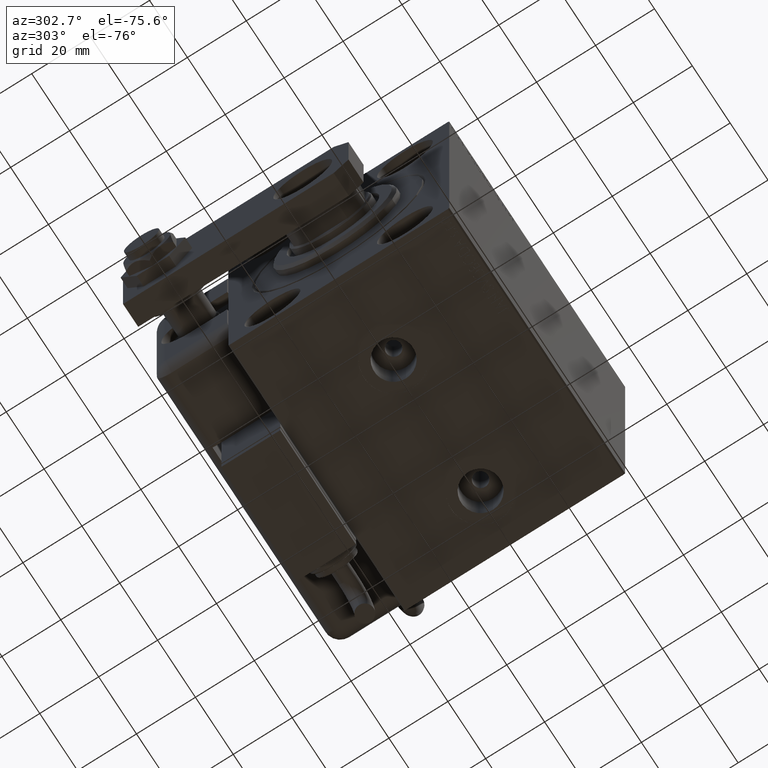
[diagram: clean part render]
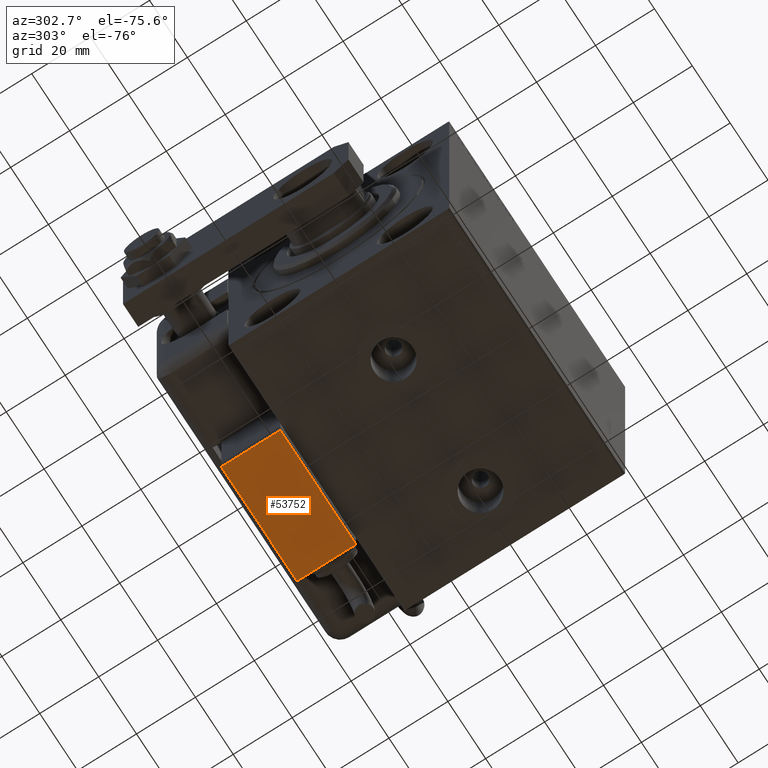
[diagram: same view with one face highlighted and labeled with its STEP entity id]
A machine part, auxiliary view. The second image highlights one B-rep face of the part: STEP entity #53752.
In plain terms, the highlighted planar face has unit normal (0, 0, 1).
Its self-contained STEP definition (entity closure, byte-faithful):
#531 = VECTOR ( 'NONE', #44403, 1000.000000000000000 ) ;
#688 = CARTESIAN_POINT ( 'NONE',  ( 0.000000000000000000, -17.49999999999996092, 0.000000000000000000 ) ) ;
#2960 = LINE ( 'NONE', #54049, #531 ) ;
#3807 = DIRECTION ( 'NONE',  ( 1.000000000000000000, 0.000000000000000000, 0.000000000000000000 ) ) ;
#3874 = CARTESIAN_POINT ( 'NONE',  ( -19.99999999999994316, -17.49999999999996092, 10.00000000000000000 ) ) ;
#6431 = DIRECTION ( 'NONE',  ( 0.000000000000000000, 1.000000000000000000, 0.000000000000000000 ) ) ;
#7235 = CARTESIAN_POINT ( 'NONE',  ( -19.99999999999994316, -17.49999999999996092, -9.999999999999998224 ) ) ;
#7674 = ORIENTED_EDGE ( 'NONE', *, *, #58037, .T. ) ;
#8703 = VERTEX_POINT ( 'NONE', #11074 ) ;
#9440 = EDGE_CURVE ( 'NONE', #37365, #53766, #48945, .T. ) ;
#10376 = DIRECTION ( 'NONE',  ( 0.000000000000000000, -0.000000000000000000, 1.000000000000000000 ) ) ;
#11074 = CARTESIAN_POINT ( 'NONE',  ( -19.99999999999994316, -17.49999999999996092, -9.999999999999998224 ) ) ;
#17436 = EDGE_CURVE ( 'NONE', #8703, #48810, #48654, .T. ) ;
#19445 = FACE_OUTER_BOUND ( 'NONE', #59650, .T. ) ;
#20152 = CARTESIAN_POINT ( 'NONE',  ( 20.00000000000005329, -17.49999999999996092, 10.00000000000000000 ) ) ;
#20246 = EDGE_CURVE ( 'NONE', #53766, #8703, #2960, .T. ) ;
#23741 = DIRECTION ( 'NONE',  ( 0.000000000000000000, 0.000000000000000000, 1.000000000000000000 ) ) ;
#27382 = CARTESIAN_POINT ( 'NONE',  ( 20.00000000000005329, -17.49999999999996092, -9.999999999999998224 ) ) ;
#27502 = CARTESIAN_POINT ( 'NONE',  ( 20.00000000000005329, -17.49999999999996092, -9.999999999999998224 ) ) ;
#31271 = ORIENTED_EDGE ( 'NONE', *, *, #9440, .T. ) ;
#33436 = AXIS2_PLACEMENT_3D ( 'NONE', #688, #6431, #10376 ) ;
#37365 = VERTEX_POINT ( 'NONE', #20152 ) ;
#41045 = VECTOR ( 'NONE', #3807, 1000.000000000000000 ) ;
#42773 = VECTOR ( 'NONE', #45590, 1000.000000000000000 ) ;
#44403 = DIRECTION ( 'NONE',  ( -0.000000000000000000, -0.000000000000000000, -1.000000000000000000 ) ) ;
#45590 = DIRECTION ( 'NONE',  ( -1.000000000000000000, -0.000000000000000000, -0.000000000000000000 ) ) ;
#48654 = LINE ( 'NONE', #7235, #41045 ) ;
#48810 = VERTEX_POINT ( 'NONE', #27502 ) ;
#48945 = LINE ( 'NONE', #3874, #42773 ) ;
#50013 = VECTOR ( 'NONE', #23741, 1000.000000000000000 ) ;
#51787 = PLANE ( 'NONE',  #33436 ) ;
#52058 = ORIENTED_EDGE ( 'NONE', *, *, #20246, .T. ) ;
#53752 = ADVANCED_FACE ( 'NONE', ( #19445 ), #51787, .F. ) ;
#53766 = VERTEX_POINT ( 'NONE', #53887 ) ;
#53887 = CARTESIAN_POINT ( 'NONE',  ( -19.99999999999994316, -17.49999999999996092, 10.00000000000000000 ) ) ;
#54049 = CARTESIAN_POINT ( 'NONE',  ( -19.99999999999994316, -17.49999999999996092, -9.999999999999998224 ) ) ;
#55168 = LINE ( 'NONE', #27382, #50013 ) ;
#56167 = ORIENTED_EDGE ( 'NONE', *, *, #17436, .T. ) ;
#58037 = EDGE_CURVE ( 'NONE', #48810, #37365, #55168, .T. ) ;
#59650 = EDGE_LOOP ( 'NONE', ( #7674, #31271, #52058, #56167 ) ) ;